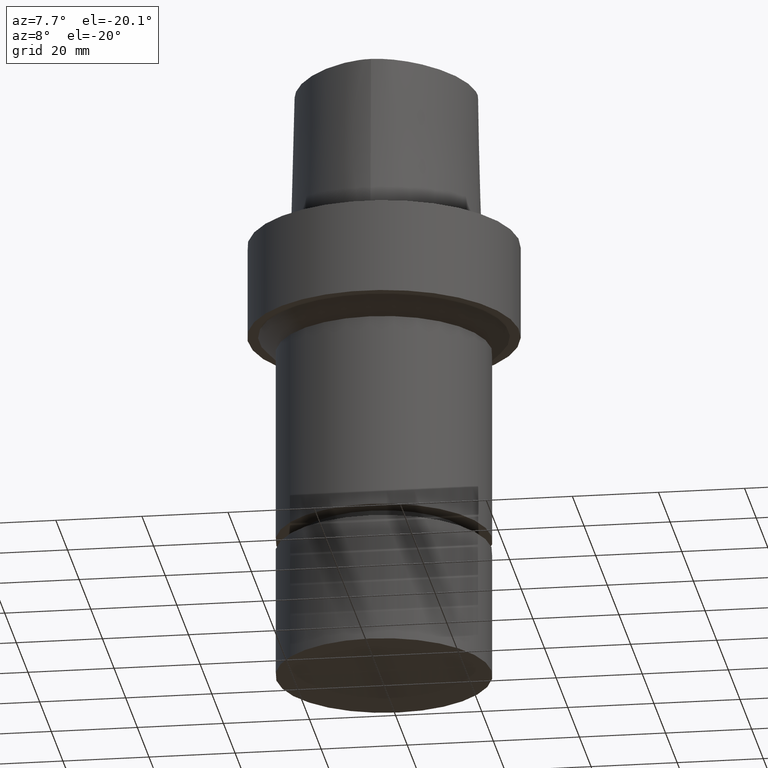
[diagram: clean part render]
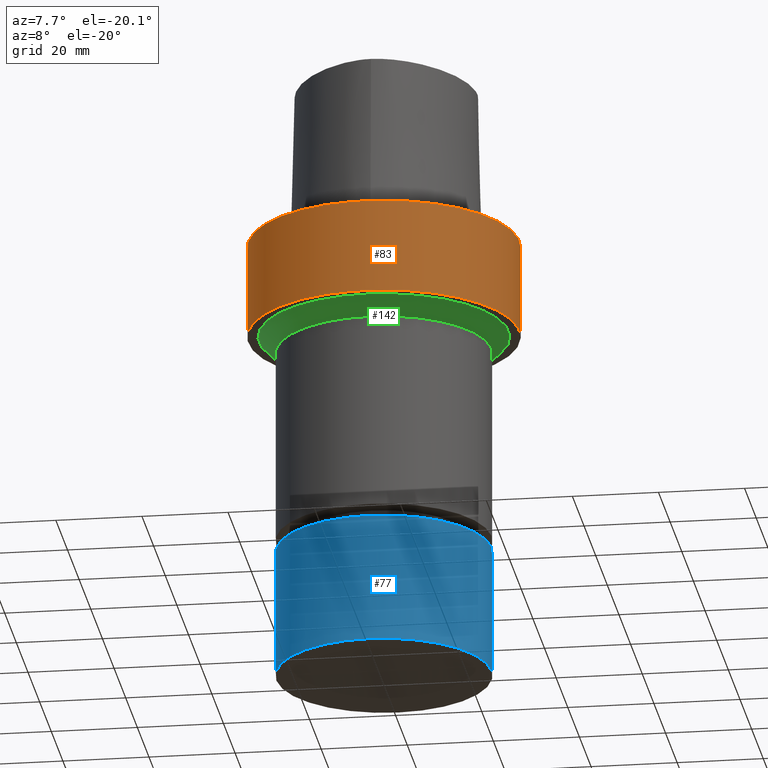
[diagram: same view with three faces highlighted in distinct colors, each labeled with its STEP entity id]
A machine part, auxiliary view with three faces highlighted in distinct colors.
Their STEP definitions:

[orange] entity #83 — the highlighted cylindrical surface (bore or boss wall) has radius 31.5 mm, axis along (0, 0, -1).
#83=ADVANCED_FACE('Unnamed[1]',(#207,#208),#209,.T.);
#89=EDGE_CURVE('Unnamed[1]',#218,#218,#219,.T.);
#120=EDGE_CURVE('Unnamed[1]',#263,#263,#264,.T.);
#207=FACE_BOUND('',#368,.T.);
#208=FACE_BOUND('',#369,.T.);
#209=CYLINDRICAL_SURFACE('',#370,31.5);
#218=VERTEX_POINT('',#399);
#219=CIRCLE('',#400,31.5);
#263=VERTEX_POINT('',#473);
#264=CIRCLE('',#474,31.5);
#368=EDGE_LOOP('',(#759));
#369=EDGE_LOOP('',(#760));
#370=AXIS2_PLACEMENT_3D('',#761,#762,#763);
#399=CARTESIAN_POINT('',(1.34711147906212E-015,31.5,-22.0000000000006));
#400=AXIS2_PLACEMENT_3D('',#767,#768,#769);
#473=CARTESIAN_POINT('',(-3.88267476788467E-031,31.5,3.85763741731416E-015));
#474=AXIS2_PLACEMENT_3D('',#810,#811,#812);
#759=ORIENTED_EDGE('',*,*,#89,.F.);
#760=ORIENTED_EDGE('',*,*,#120,.T.);
#761=CARTESIAN_POINT('',(6.73555739531062E-016,1.34711147906212E-015,-11.0000000000003));
#762=DIRECTION('',(6.12323399573677E-017,1.22464679914735E-016,-1.0));
#763=DIRECTION('',(-1.23259516440783E-032,1.0,1.22464679914735E-016));
#767=CARTESIAN_POINT('',(1.34711147906212E-015,2.69422295812425E-015,-22.0000000000006));
#768=DIRECTION('',(6.12323399573677E-017,1.22464679914735E-016,-1.0));
#769=DIRECTION('',(-1.23259516440783E-032,1.0,1.22464679914735E-016));
#810=CARTESIAN_POINT('',(0.0,0.0,0.0));
#811=DIRECTION('',(6.12323399573677E-017,1.22464679914735E-016,-1.0));
#812=DIRECTION('',(-1.23259516440783E-032,1.0,1.22464679914735E-016));

[blue] entity #77 — the highlighted cylindrical surface (bore or boss wall) has radius 25 mm, axis along (0, 0, -1).
#77=ADVANCED_FACE('Unnamed[1]',(#198,#199),#200,.T.);
#147=EDGE_CURVE('Unnamed[1]',#302,#302,#303,.T.);
#161=EDGE_CURVE('Unnamed[1]',#323,#323,#324,.T.);
#198=FACE_BOUND('',#357,.T.);
#199=FACE_BOUND('',#358,.T.);
#200=CYLINDRICAL_SURFACE('',#359,25.0);
#302=VERTEX_POINT('',#676);
#303=CIRCLE('',#677,25.0);
#323=VERTEX_POINT('',#718);
#324=CIRCLE('',#719,25.0);
#357=EDGE_LOOP('',(#746));
#358=EDGE_LOOP('',(#747));
#359=AXIS2_PLACEMENT_3D('',#748,#749,#750);
#676=CARTESIAN_POINT('',(6.4293956955236E-015,25.0,-105.0));
#677=AXIS2_PLACEMENT_3D('',#853,#854,#855);
#718=CARTESIAN_POINT('',(4.5801790288111E-015,25.0,-74.8));
#719=AXIS2_PLACEMENT_3D('',#874,#875,#876);
#746=ORIENTED_EDGE('',*,*,#147,.F.);
#747=ORIENTED_EDGE('',*,*,#161,.T.);
#748=CARTESIAN_POINT('',(5.50478736216735E-015,1.10095747243347E-014,-89.9));
#749=DIRECTION('',(6.12323399573677E-017,1.22464679914735E-016,-1.0));
#750=DIRECTION('',(-1.23259516440783E-032,1.0,1.22464679914735E-016));
#853=CARTESIAN_POINT('',(6.4293956955236E-015,1.28587913910472E-014,-105.0));
#854=DIRECTION('',(6.12323399573677E-017,1.22464679914735E-016,-1.0));
#855=DIRECTION('',(-1.23259516440783E-032,1.0,1.22464679914735E-016));
#874=CARTESIAN_POINT('',(4.5801790288111E-015,9.1603580576222E-015,-74.8));
#875=DIRECTION('',(6.12323399573677E-017,1.22464679914735E-016,-1.0));
#876=DIRECTION('',(-1.23259516440783E-032,1.0,1.22464679914735E-016));

[green] entity #142 — the highlighted conical surface has half-angle 45 deg.
#91=EDGE_CURVE('Unnamed[1]',#221,#221,#222,.T.);
#142=ADVANCED_FACE('Unnamed[1]',(#294,#295),#296,.T.);
#151=EDGE_CURVE('Unnamed[1]',#308,#308,#309,.T.);
#221=VERTEX_POINT('',#403);
#222=CIRCLE('',#404,28.9999999999999);
#294=FACE_BOUND('',#666,.T.);
#295=FACE_BOUND('',#667,.T.);
#296=CONICAL_SURFACE('',#668,26.9999999999999,0.78539816339745);
#308=VERTEX_POINT('',#684);
#309=CIRCLE('',#685,24.9999999999999);
#403=CARTESIAN_POINT('',(1.34711147906212E-015,28.9999999999999,-22.0000000000006));
#404=AXIS2_PLACEMENT_3D('',#770,#771,#772);
#666=EDGE_LOOP('',(#843));
#667=EDGE_LOOP('',(#844));
#668=AXIS2_PLACEMENT_3D('',#845,#846,#847);
#684=CARTESIAN_POINT('',(1.59204083889159E-015,24.9999999999999,-26.0000000000006));
#685=AXIS2_PLACEMENT_3D('',#859,#860,#861);
#770=CARTESIAN_POINT('',(1.34711147906212E-015,2.69422295812425E-015,-22.0000000000006));
#771=DIRECTION('',(6.12323399573677E-017,1.22464679914735E-016,-1.0));
#772=DIRECTION('',(-1.23259516440783E-032,1.0,1.22464679914735E-016));
#843=ORIENTED_EDGE('',*,*,#151,.F.);
#844=ORIENTED_EDGE('',*,*,#91,.T.);
#845=CARTESIAN_POINT('',(1.46957615897686E-015,2.93915231795372E-015,-24.0000000000006));
#846=DIRECTION('',(-6.12323399573677E-017,-1.22464679914735E-016,1.0));
#847=DIRECTION('',(-1.23259516440783E-032,1.0,1.22464679914735E-016));
#859=CARTESIAN_POINT('',(1.59204083889159E-015,3.18408167778319E-015,-26.0000000000006));
#860=DIRECTION('',(6.12323399573677E-017,1.22464679914735E-016,-1.0));
#861=DIRECTION('',(-1.23259516440783E-032,1.0,1.22464679914735E-016));